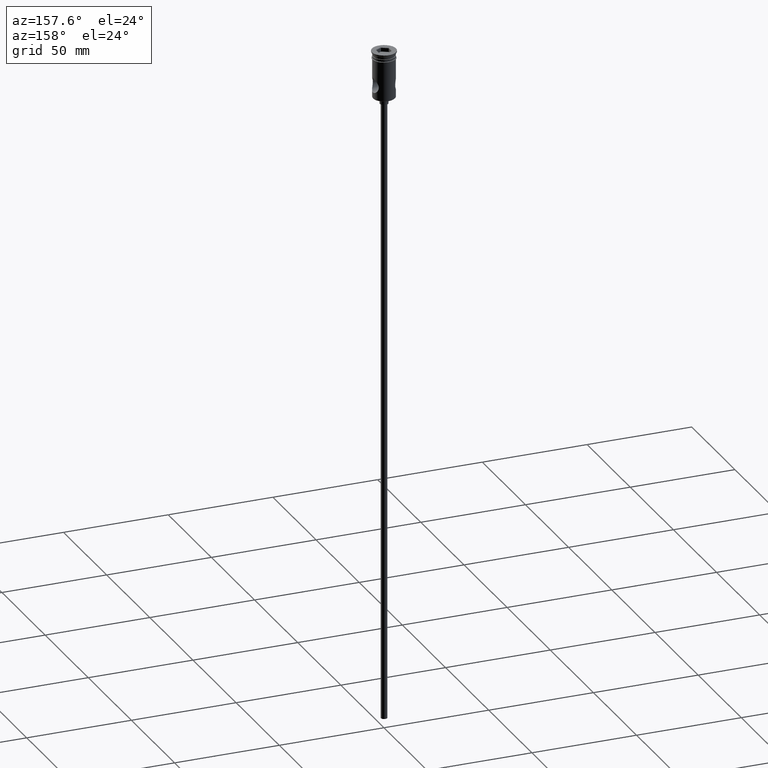
[diagram: clean part render]
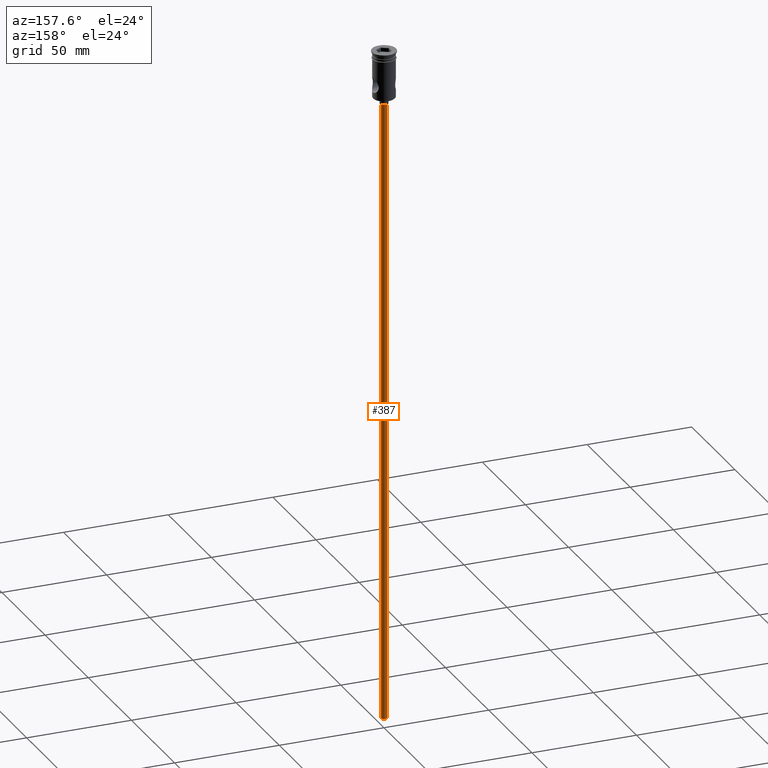
[diagram: same view with one face highlighted and labeled with its STEP entity id]
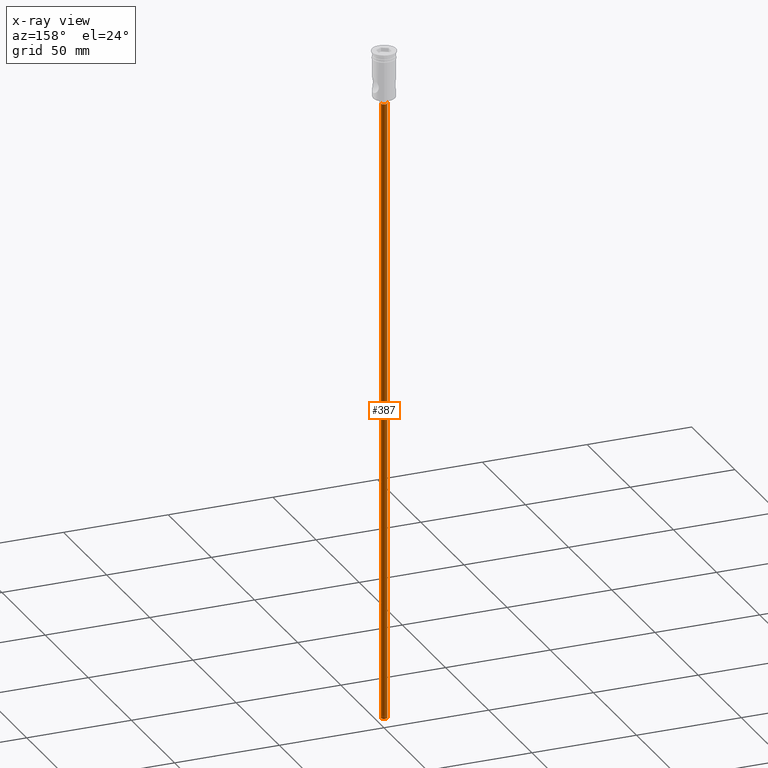
[diagram: x-ray of the same camera — body ghosted, the highlighted face saturated]
A machine part, auxiliary view. The second image highlights one B-rep face of the part: STEP entity #387.
The next image is the same camera in x-ray: the body ghosted, the highlighted face saturated — about 0% of this face is hidden behind the body in this view.
In plain terms, the highlighted cylindrical surface (edge-blend (fillet) strip) has radius 1.5 mm, axis along (-0, -0, 1).
Its self-contained STEP definition (entity closure, byte-faithful):
#9 = CARTESIAN_POINT ( 'NONE',  ( 0.000000000000000000, 0.000000000000000000, -322.5000000000000000 ) ) ;
#16 = VERTEX_POINT ( 'NONE', #803 ) ;
#26 = EDGE_CURVE ( 'NONE', #16, #491, #534, .T. ) ;
#93 = LINE ( 'NONE', #1280, #516 ) ;
#147 = LINE ( 'NONE', #1251, #1324 ) ;
#174 = EDGE_LOOP ( 'NONE', ( #625, #647, #1210, #1215 ) ) ;
#311 = DIRECTION ( 'NONE',  ( -1.000000000000000000, 0.000000000000000000, 0.000000000000000000 ) ) ;
#356 = DIRECTION ( 'NONE',  ( 0.000000000000000000, 0.000000000000000000, -1.000000000000000000 ) ) ;
#387 = ADVANCED_FACE ( 'NONE', ( #1014 ), #554, .T. ) ;
#471 = CARTESIAN_POINT ( 'NONE',  ( 1.500000000000000222, 0.000000000000000000, -25.50000000000000000 ) ) ;
#488 = AXIS2_PLACEMENT_3D ( 'NONE', #9, #1439, #1223 ) ;
#491 = VERTEX_POINT ( 'NONE', #865 ) ;
#516 = VECTOR ( 'NONE', #610, 1000.000000000000000 ) ;
#534 = CIRCLE ( 'NONE', #717, 1.500000000000000222 ) ;
#554 = CYLINDRICAL_SURFACE ( 'NONE', #488, 1.500000000000000222 ) ;
#610 = DIRECTION ( 'NONE',  ( -0.000000000000000000, -0.000000000000000000, 1.000000000000000000 ) ) ;
#625 = ORIENTED_EDGE ( 'NONE', *, *, #26, .F. ) ;
#639 = DIRECTION ( 'NONE',  ( 0.000000000000000000, 0.000000000000000000, -1.000000000000000000 ) ) ;
#647 = ORIENTED_EDGE ( 'NONE', *, *, #982, .T. ) ;
#659 = VERTEX_POINT ( 'NONE', #1081 ) ;
#661 = CARTESIAN_POINT ( 'NONE',  ( 0.000000000000000000, 0.000000000000000000, -25.50000000000000000 ) ) ;
#717 = AXIS2_PLACEMENT_3D ( 'NONE', #1319, #356, #809 ) ;
#803 = CARTESIAN_POINT ( 'NONE',  ( -1.500000000000000222, 1.836970198721030181E-16, -322.5000000000000000 ) ) ;
#809 = DIRECTION ( 'NONE',  ( -1.000000000000000000, 0.000000000000000000, 0.000000000000000000 ) ) ;
#818 = AXIS2_PLACEMENT_3D ( 'NONE', #661, #639, #311 ) ;
#823 = EDGE_CURVE ( 'NONE', #659, #941, #897, .T. ) ;
#865 = CARTESIAN_POINT ( 'NONE',  ( 1.500000000000000222, 0.000000000000000000, -322.5000000000000000 ) ) ;
#884 = EDGE_CURVE ( 'NONE', #491, #941, #147, .T. ) ;
#897 = CIRCLE ( 'NONE', #818, 1.500000000000000222 ) ;
#931 = DIRECTION ( 'NONE',  ( -0.000000000000000000, -0.000000000000000000, 1.000000000000000000 ) ) ;
#941 = VERTEX_POINT ( 'NONE', #471 ) ;
#982 = EDGE_CURVE ( 'NONE', #16, #659, #93, .T. ) ;
#1014 = FACE_OUTER_BOUND ( 'NONE', #174, .T. ) ;
#1081 = CARTESIAN_POINT ( 'NONE',  ( -1.500000000000000222, 1.836970198721030181E-16, -25.50000000000000000 ) ) ;
#1210 = ORIENTED_EDGE ( 'NONE', *, *, #823, .T. ) ;
#1215 = ORIENTED_EDGE ( 'NONE', *, *, #884, .F. ) ;
#1223 = DIRECTION ( 'NONE',  ( 1.000000000000000000, 0.000000000000000000, 0.000000000000000000 ) ) ;
#1251 = CARTESIAN_POINT ( 'NONE',  ( 1.500000000000000222, 0.000000000000000000, -322.5000000000000000 ) ) ;
#1280 = CARTESIAN_POINT ( 'NONE',  ( -1.500000000000000222, 1.836970198721030181E-16, -322.5000000000000000 ) ) ;
#1319 = CARTESIAN_POINT ( 'NONE',  ( 0.000000000000000000, 0.000000000000000000, -322.5000000000000000 ) ) ;
#1324 = VECTOR ( 'NONE', #931, 1000.000000000000000 ) ;
#1439 = DIRECTION ( 'NONE',  ( -0.000000000000000000, -0.000000000000000000, 1.000000000000000000 ) ) ;